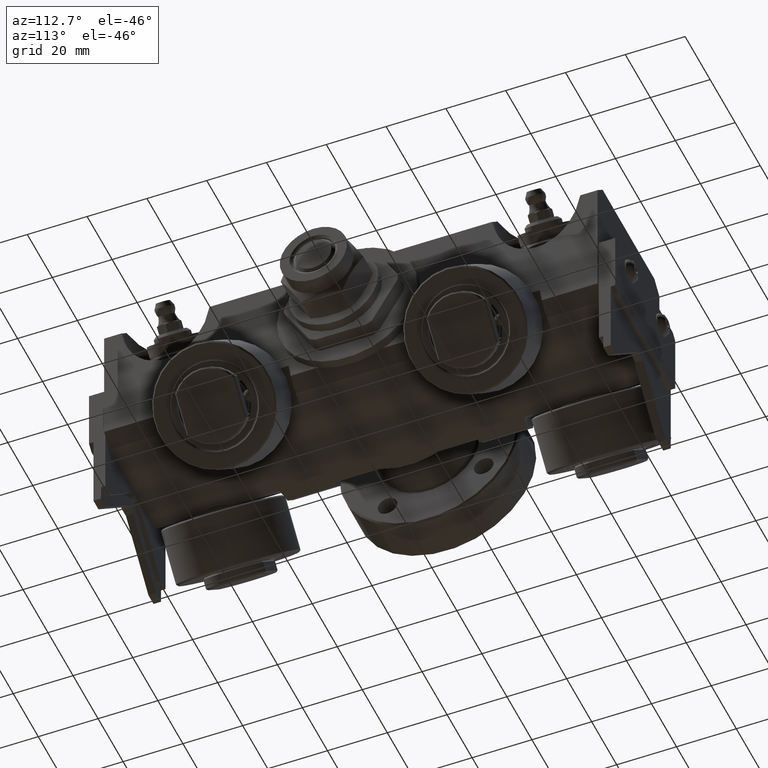
[diagram: clean part render]
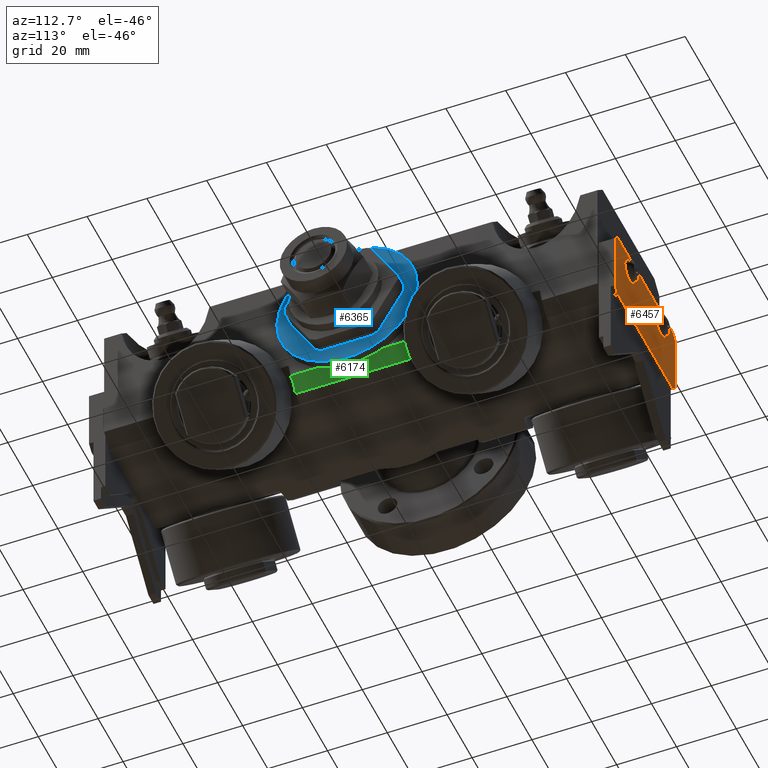
[diagram: same view with three faces highlighted in distinct colors, each labeled with its STEP entity id]
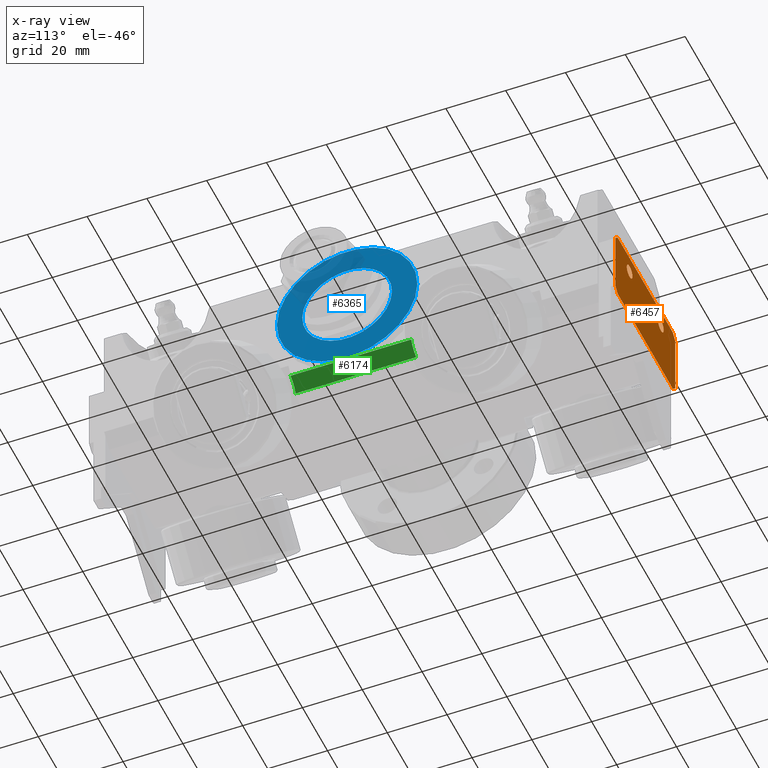
[diagram: x-ray of the same camera — body ghosted, the three highlighted faces saturated]
A machine part, auxiliary view with three faces highlighted in distinct colors.
The next image is the same camera in x-ray (body ghosted, the three faces saturated) — at least one of them is partly hidden behind the body in this view.
Their STEP definitions:

[orange] entity #6457 — the highlighted planar face has unit normal (0, 1, 0).
#484=FACE_BOUND('',#1421,.T.);
#485=FACE_BOUND('',#1422,.T.);
#635=PLANE('',#7616);
#980=FACE_OUTER_BOUND('',#1420,.T.);
#1420=EDGE_LOOP('',(#5912,#5913,#5914,#5915,#5916,#5917,#5918,#5919));
#1421=EDGE_LOOP('',(#5920));
#1422=EDGE_LOOP('',(#5921));
#1771=CIRCLE('',#7617,2.25);
#1772=CIRCLE('',#7618,2.25);
#2237=LINE('',#13363,#2608);
#2241=LINE('',#13371,#2612);
#2244=LINE('',#13377,#2615);
#2245=LINE('',#13379,#2616);
#2246=LINE('',#13381,#2617);
#2247=LINE('',#13383,#2618);
#2248=LINE('',#13385,#2619);
#2249=LINE('',#13386,#2620);
#2608=VECTOR('',#9432,10.);
#2612=VECTOR('',#9438,10.);
#2615=VECTOR('',#9443,10.);
#2616=VECTOR('',#9444,10.);
#2617=VECTOR('',#9445,10.);
#2618=VECTOR('',#9446,10.);
#2619=VECTOR('',#9447,10.);
#2620=VECTOR('',#9448,10.);
#3224=VERTEX_POINT('',#13361);
#3225=VERTEX_POINT('',#13362);
#3228=VERTEX_POINT('',#13370);
#3230=VERTEX_POINT('',#13376);
#3231=VERTEX_POINT('',#13378);
#3232=VERTEX_POINT('',#13380);
#3233=VERTEX_POINT('',#13382);
#3234=VERTEX_POINT('',#13384);
#3235=VERTEX_POINT('',#13387);
#3236=VERTEX_POINT('',#13389);
#4125=EDGE_CURVE('',#3224,#3225,#2237,.T.);
#4129=EDGE_CURVE('',#3228,#3225,#2241,.T.);
#4132=EDGE_CURVE('',#3224,#3230,#2244,.T.);
#4133=EDGE_CURVE('',#3231,#3230,#2245,.T.);
#4134=EDGE_CURVE('',#3231,#3232,#2246,.T.);
#4135=EDGE_CURVE('',#3233,#3232,#2247,.T.);
#4136=EDGE_CURVE('',#3233,#3234,#2248,.T.);
#4137=EDGE_CURVE('',#3228,#3234,#2249,.T.);
#4138=EDGE_CURVE('',#3235,#3235,#1771,.T.);
#4139=EDGE_CURVE('',#3236,#3236,#1772,.T.);
#5912=ORIENTED_EDGE('',*,*,#4125,.F.);
#5913=ORIENTED_EDGE('',*,*,#4132,.T.);
#5914=ORIENTED_EDGE('',*,*,#4133,.F.);
#5915=ORIENTED_EDGE('',*,*,#4134,.T.);
#5916=ORIENTED_EDGE('',*,*,#4135,.F.);
#5917=ORIENTED_EDGE('',*,*,#4136,.T.);
#5918=ORIENTED_EDGE('',*,*,#4137,.F.);
#5919=ORIENTED_EDGE('',*,*,#4129,.T.);
#5920=ORIENTED_EDGE('',*,*,#4138,.T.);
#5921=ORIENTED_EDGE('',*,*,#4139,.T.);
#6457=ADVANCED_FACE('',(#980,#484,#485),#635,.T.);
#7616=AXIS2_PLACEMENT_3D('',#13375,#9441,#9442);
#7617=AXIS2_PLACEMENT_3D('',#13388,#9449,#9450);
#7618=AXIS2_PLACEMENT_3D('',#13390,#9451,#9452);
#9432=DIRECTION('',(-0.707106781186548,0.,-0.707106781186547));
#9438=DIRECTION('',(1.,0.,-3.73847008512192E-16));
#9441=DIRECTION('center_axis',(0.,-1.,0.));
#9442=DIRECTION('ref_axis',(0.,0.,-1.));
#9443=DIRECTION('',(-3.5527136788005E-16,0.,1.));
#9444=DIRECTION('',(0.707106781186548,0.,-0.707106781186548));
#9445=DIRECTION('',(-1.,0.,0.));
#9446=DIRECTION('',(0.707106781186547,0.,0.707106781186548));
#9447=DIRECTION('',(-1.77635683940025E-16,0.,-1.));
#9448=DIRECTION('',(-0.707106781186548,0.,0.707106781186547));
#9449=DIRECTION('center_axis',(0.,1.,0.));
#9450=DIRECTION('ref_axis',(1.,0.,1.97372982155583E-15));
#9451=DIRECTION('center_axis',(0.,1.,0.));
#9452=DIRECTION('ref_axis',(1.,0.,0.));
#13361=CARTESIAN_POINT('',(24.,-0.75,2.));
#13362=CARTESIAN_POINT('',(22.,-0.75,2.9681400662747E-15));
#13363=CARTESIAN_POINT('',(20.125,-0.75,-1.875));
#13370=CARTESIAN_POINT('',(-22.,-0.75,1.94174084408112E-14));
#13371=CARTESIAN_POINT('',(-24.,-0.75,2.01651024578355E-14));
#13375=CARTESIAN_POINT('Origin',(4.44089209850063E-15,-0.75,12.5));
#13376=CARTESIAN_POINT('',(24.,-0.75,23.));
#13377=CARTESIAN_POINT('',(24.,-0.75,2.22044604925031E-15));
#13378=CARTESIAN_POINT('',(22.,-0.75,25.));
#13379=CARTESIAN_POINT('',(20.125,-0.75,26.875));
#13380=CARTESIAN_POINT('',(-22.,-0.75,25.));
#13381=CARTESIAN_POINT('',(24.,-0.75,25.));
#13382=CARTESIAN_POINT('',(-24.,-0.75,23.));
#13383=CARTESIAN_POINT('',(-20.125,-0.75,26.875));
#13384=CARTESIAN_POINT('',(-24.,-0.75,2.00000000000002));
#13385=CARTESIAN_POINT('',(-24.,-0.75,25.));
#13386=CARTESIAN_POINT('',(-20.125,-0.75,-1.87499999999999));
#13387=CARTESIAN_POINT('',(10.25,-0.75,19.));
#13388=CARTESIAN_POINT('Origin',(12.5,-0.75,19.));
#13389=CARTESIAN_POINT('',(-14.75,-0.75,19.));
#13390=CARTESIAN_POINT('Origin',(-12.5,-0.75,19.));

[blue] entity #6365 — the highlighted planar face has unit normal (-1, 0, 0).
#467=FACE_BOUND('',#1312,.T.);
#579=PLANE('',#7448);
#888=FACE_OUTER_BOUND('',#1311,.T.);
#1311=EDGE_LOOP('',(#5474));
#1312=EDGE_LOOP('',(#5475));
#1708=CIRCLE('',#7446,15.);
#1710=CIRCLE('',#7449,23.5);
#3083=VERTEX_POINT('',#12825);
#3085=VERTEX_POINT('',#12831);
#3908=EDGE_CURVE('',#3083,#3083,#1708,.T.);
#3911=EDGE_CURVE('',#3085,#3085,#1710,.T.);
#5474=ORIENTED_EDGE('',*,*,#3911,.T.);
#5475=ORIENTED_EDGE('',*,*,#3908,.T.);
#6365=ADVANCED_FACE('',(#888,#467),#579,.F.);
#7446=AXIS2_PLACEMENT_3D('',#12826,#8976,#8977);
#7448=AXIS2_PLACEMENT_3D('',#12830,#8981,#8982);
#7449=AXIS2_PLACEMENT_3D('',#12832,#8983,#8984);
#8976=DIRECTION('center_axis',(1.,0.,0.));
#8977=DIRECTION('ref_axis',(0.,-1.,0.));
#8981=DIRECTION('center_axis',(1.,0.,0.));
#8982=DIRECTION('ref_axis',(0.,0.,-1.));
#8983=DIRECTION('center_axis',(-1.,0.,0.));
#8984=DIRECTION('ref_axis',(0.,-1.,0.));
#12825=CARTESIAN_POINT('',(-1.5,15.,1.83697019872103E-15));
#12826=CARTESIAN_POINT('Origin',(-1.5,0.,0.));
#12830=CARTESIAN_POINT('Origin',(-1.5,-2.7594817561809E-15,-3.14956886418484E-16));
#12831=CARTESIAN_POINT('',(-1.5,23.5,2.87791997799628E-15));
#12832=CARTESIAN_POINT('Origin',(-1.5,0.,0.));

[green] entity #6174 — the highlighted planar face has unit normal (0.7071, 0, -0.7071).
#509=PLANE('',#7015);
#697=FACE_OUTER_BOUND('',#1055,.T.);
#1055=EDGE_LOOP('',(#4457,#4458,#4459,#4460));
#1483=CIRCLE('',#6999,22.);
#1489=CIRCLE('',#7012,22.);
#1934=LINE('',#9953,#2305);
#1979=LINE('',#10628,#2350);
#2305=VECTOR('',#7743,10.);
#2350=VECTOR('',#7976,10.);
#2691=VERTEX_POINT('',#9950);
#2692=VERTEX_POINT('',#9952);
#2756=VERTEX_POINT('',#10599);
#2762=VERTEX_POINT('',#10619);
#3316=EDGE_CURVE('',#2692,#2691,#1934,.T.);
#3415=EDGE_CURVE('',#2691,#2756,#1483,.T.);
#3426=EDGE_CURVE('',#2762,#2692,#1489,.T.);
#3429=EDGE_CURVE('',#2756,#2762,#1979,.T.);
#4457=ORIENTED_EDGE('',*,*,#3415,.T.);
#4458=ORIENTED_EDGE('',*,*,#3429,.T.);
#4459=ORIENTED_EDGE('',*,*,#3426,.T.);
#4460=ORIENTED_EDGE('',*,*,#3316,.T.);
#6174=ADVANCED_FACE('',(#697),#509,.T.);
#6999=AXIS2_PLACEMENT_3D('',#10601,#7939,#7940);
#7012=AXIS2_PLACEMENT_3D('',#10622,#7967,#7968);
#7015=AXIS2_PLACEMENT_3D('',#10627,#7974,#7975);
#7743=DIRECTION('',(0.,1.,0.));
#7939=DIRECTION('center_axis',(-0.707106781186548,0.,0.707106781186548));
#7940=DIRECTION('ref_axis',(-0.707106781186548,1.13671669516685E-16,-0.707106781186548));
#7967=DIRECTION('center_axis',(-0.707106781186548,0.,0.707106781186548));
#7968=DIRECTION('ref_axis',(-0.707106781186548,4.67787869535365E-16,-0.707106781186548));
#7974=DIRECTION('center_axis',(0.707106781186548,0.,-0.707106781186548));
#7975=DIRECTION('ref_axis',(-0.707106781186548,0.,-0.707106781186548));
#7976=DIRECTION('',(0.,-1.,0.));
#9950=CARTESIAN_POINT('',(20.714,20.1858909877116,-24.75));
#9952=CARTESIAN_POINT('',(20.714,-20.1858909877116,-24.75));
#9953=CARTESIAN_POINT('',(20.714,0.,-24.75));
#10599=CARTESIAN_POINT('',(24.75,20.1858909877116,-20.714));
#10601=CARTESIAN_POINT('Origin',(22.732,42.,-22.732));
#10619=CARTESIAN_POINT('',(24.75,-20.1858909877116,-20.714));
#10622=CARTESIAN_POINT('Origin',(22.732,-42.,-22.732));
#10627=CARTESIAN_POINT('Origin',(22.732,0.,-22.732));
#10628=CARTESIAN_POINT('',(24.75,0.,-20.714));